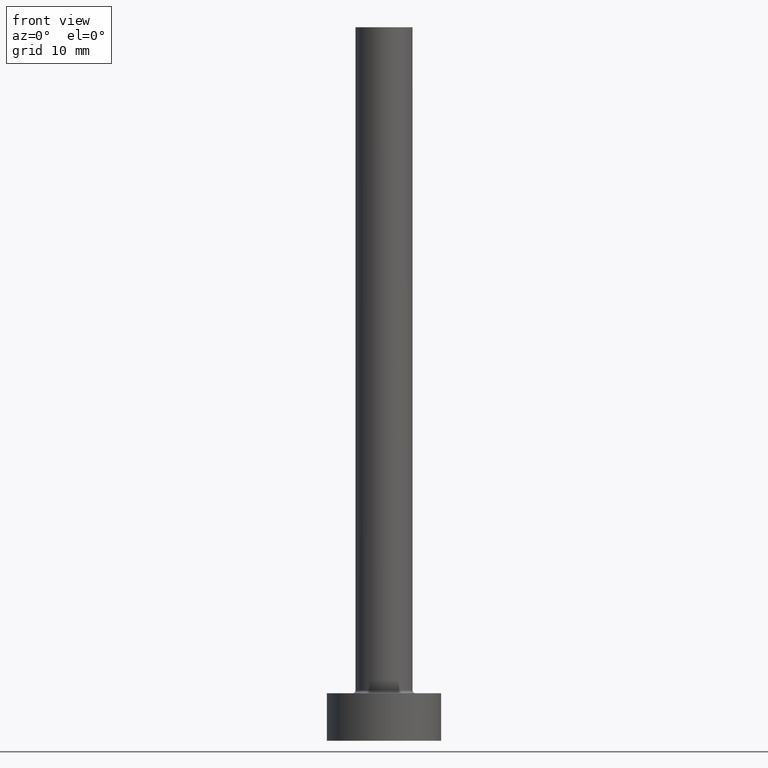
[diagram: clean part render]
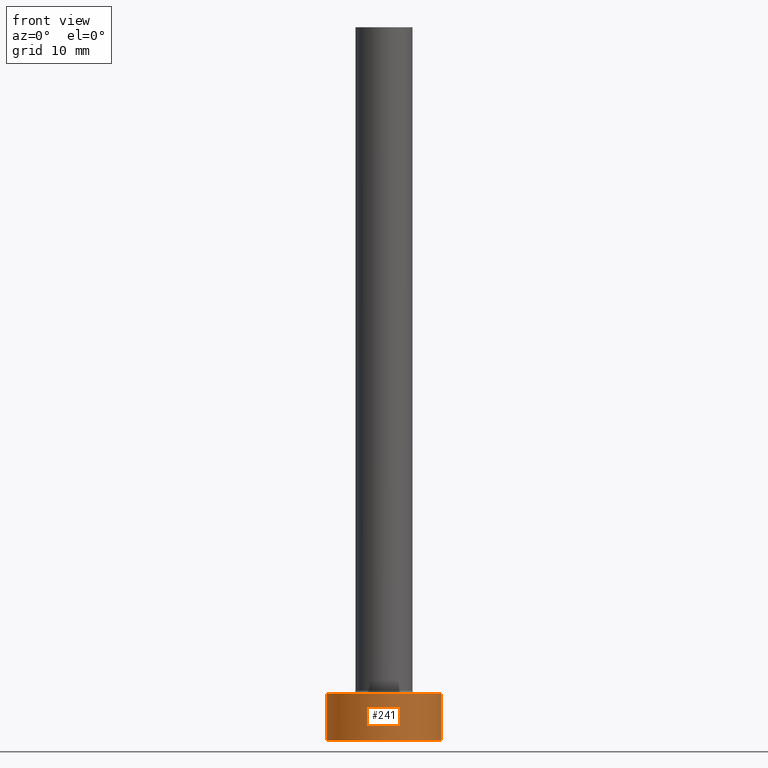
[diagram: same view with one face highlighted and labeled with its STEP entity id]
A machine part, front view. The second image highlights one B-rep face of the part: STEP entity #241.
In plain terms, the highlighted cylindrical surface (partial cylindrical patch) has radius 6 mm, axis along (-0, -0, -1).
Its self-contained STEP definition (entity closure, byte-faithful):
#13 = DIRECTION ( 'NONE',  ( 0.000000000000000000, 0.000000000000000000, 1.000000000000000000 ) ) ;
#19 = VERTEX_POINT ( 'NONE', #227 ) ;
#35 = FACE_OUTER_BOUND ( 'NONE', #114, .T. ) ;
#39 = CARTESIAN_POINT ( 'NONE',  ( -6.000000000000000888, 0.000000000000000000, 5.000000000000000000 ) ) ;
#40 = AXIS2_PLACEMENT_3D ( 'NONE', #389, #178, #322 ) ;
#42 = CYLINDRICAL_SURFACE ( 'NONE', #345, 6.000000000000000888 ) ;
#55 = CIRCLE ( 'NONE', #299, 6.000000000000000888 ) ;
#69 = DIRECTION ( 'NONE',  ( -1.000000000000000000, 0.000000000000000000, 0.000000000000000000 ) ) ;
#75 = EDGE_CURVE ( 'NONE', #364, #19, #453, .T. ) ;
#85 = VECTOR ( 'NONE', #167, 1000.000000000000000 ) ;
#88 = CIRCLE ( 'NONE', #40, 6.000000000000000888 ) ;
#111 = VERTEX_POINT ( 'NONE', #347 ) ;
#114 = EDGE_LOOP ( 'NONE', ( #179, #288, #301, #175 ) ) ;
#138 = CARTESIAN_POINT ( 'NONE',  ( 0.000000000000000000, 0.000000000000000000, 5.000000000000000000 ) ) ;
#153 = DIRECTION ( 'NONE',  ( 1.000000000000000000, 0.000000000000000000, 0.000000000000000000 ) ) ;
#167 = DIRECTION ( 'NONE',  ( -0.000000000000000000, -0.000000000000000000, -1.000000000000000000 ) ) ;
#175 = ORIENTED_EDGE ( 'NONE', *, *, #338, .T. ) ;
#178 = DIRECTION ( 'NONE',  ( 0.000000000000000000, 0.000000000000000000, 1.000000000000000000 ) ) ;
#179 = ORIENTED_EDGE ( 'NONE', *, *, #295, .F. ) ;
#207 = DIRECTION ( 'NONE',  ( -0.000000000000000000, -0.000000000000000000, -1.000000000000000000 ) ) ;
#227 = CARTESIAN_POINT ( 'NONE',  ( -6.000000000000000888, 0.000000000000000000, 0.000000000000000000 ) ) ;
#241 = ADVANCED_FACE ( 'NONE', ( #35 ), #42, .T. ) ;
#243 = LINE ( 'NONE', #324, #450 ) ;
#288 = ORIENTED_EDGE ( 'NONE', *, *, #440, .F. ) ;
#290 = DIRECTION ( 'NONE',  ( -0.000000000000000000, -0.000000000000000000, -1.000000000000000000 ) ) ;
#295 = EDGE_CURVE ( 'NONE', #111, #304, #243, .T. ) ;
#299 = AXIS2_PLACEMENT_3D ( 'NONE', #336, #13, #153 ) ;
#301 = ORIENTED_EDGE ( 'NONE', *, *, #75, .T. ) ;
#304 = VERTEX_POINT ( 'NONE', #357 ) ;
#322 = DIRECTION ( 'NONE',  ( 1.000000000000000000, 0.000000000000000000, 0.000000000000000000 ) ) ;
#324 = CARTESIAN_POINT ( 'NONE',  ( 6.000000000000000888, 7.347880794884120722E-16, 5.000000000000000000 ) ) ;
#336 = CARTESIAN_POINT ( 'NONE',  ( 0.000000000000000000, 0.000000000000000000, 5.000000000000000000 ) ) ;
#338 = EDGE_CURVE ( 'NONE', #19, #304, #88, .T. ) ;
#341 = CARTESIAN_POINT ( 'NONE',  ( -6.000000000000000888, 0.000000000000000000, 5.000000000000000000 ) ) ;
#345 = AXIS2_PLACEMENT_3D ( 'NONE', #138, #207, #69 ) ;
#347 = CARTESIAN_POINT ( 'NONE',  ( 6.000000000000000888, 7.347880794884120722E-16, 5.000000000000000000 ) ) ;
#357 = CARTESIAN_POINT ( 'NONE',  ( 6.000000000000000888, 7.347880794884120722E-16, 0.000000000000000000 ) ) ;
#364 = VERTEX_POINT ( 'NONE', #39 ) ;
#389 = CARTESIAN_POINT ( 'NONE',  ( 0.000000000000000000, 0.000000000000000000, 0.000000000000000000 ) ) ;
#440 = EDGE_CURVE ( 'NONE', #364, #111, #55, .T. ) ;
#450 = VECTOR ( 'NONE', #290, 1000.000000000000000 ) ;
#453 = LINE ( 'NONE', #341, #85 ) ;